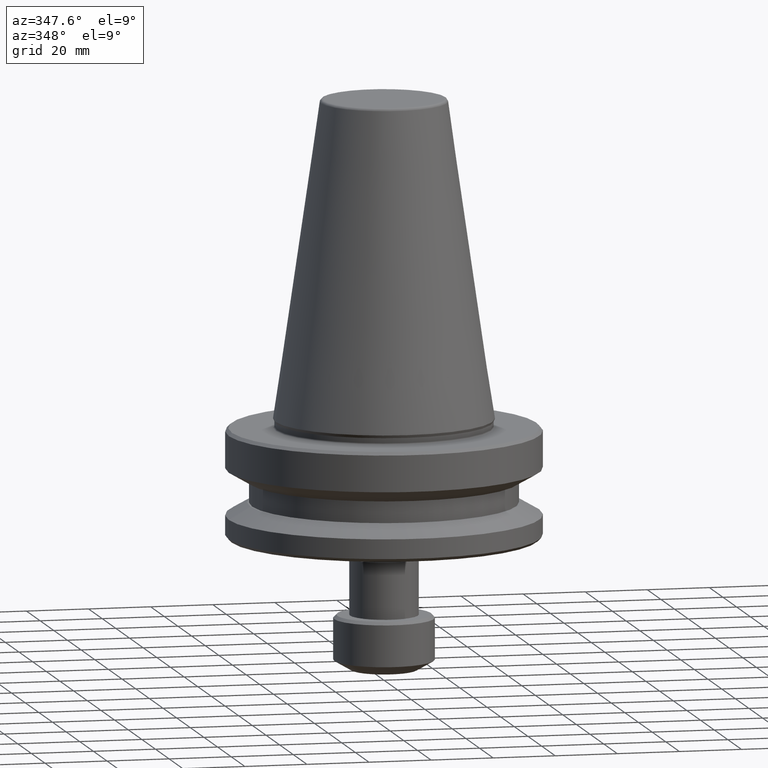
[diagram: clean part render]
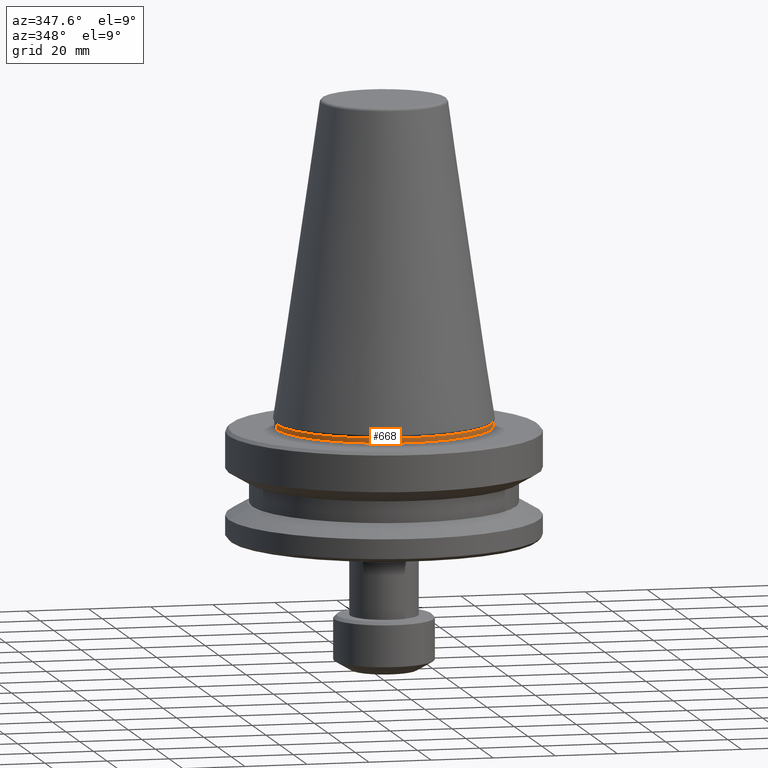
[diagram: same view with one face highlighted and labeled with its STEP entity id]
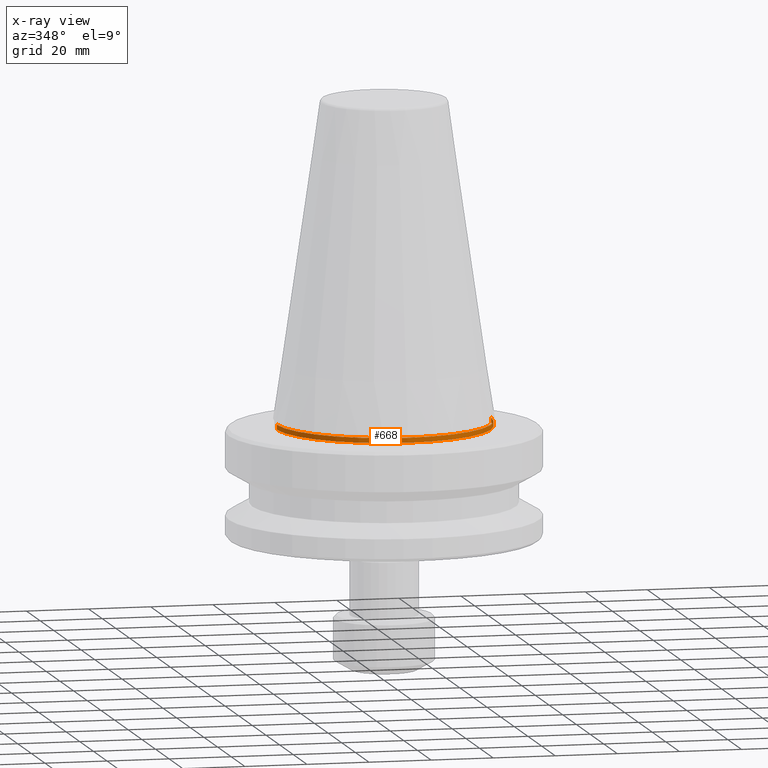
[diagram: x-ray of the same camera — body ghosted, the highlighted face saturated]
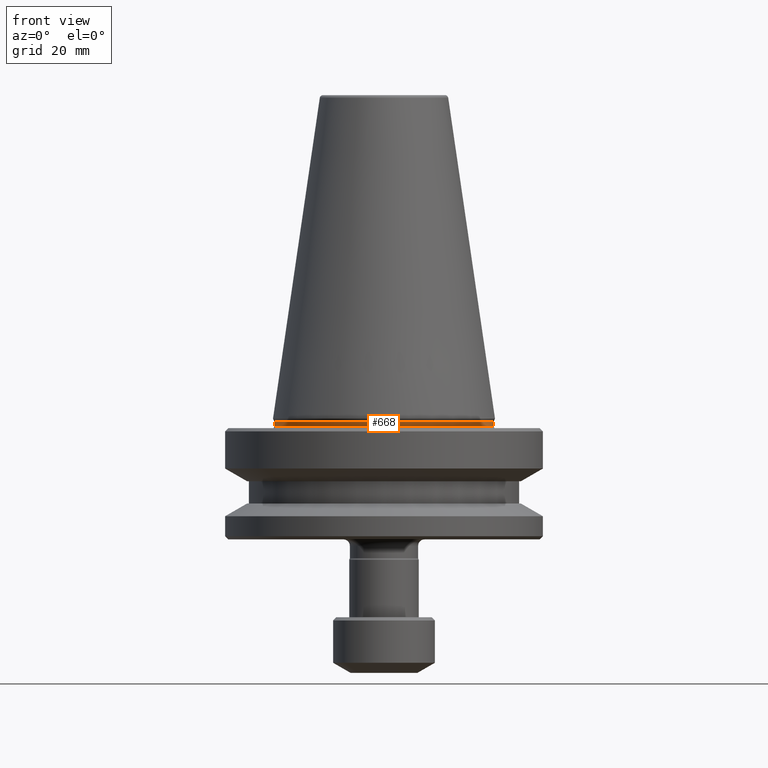
[diagram: same view with one face highlighted and labeled with its STEP entity id]
A machine part, auxiliary view. The second image highlights one B-rep face of the part: STEP entity #668.
The next image is the same camera in x-ray: the body ghosted, the highlighted face saturated — about 0% of this face is hidden behind the body in this view.
A second angle (front view) of the same face is appended — the face is thin or edge-on in the first view.
In plain terms, the highlighted cylindrical surface (partial cylindrical patch) has radius 34.5 mm, axis along (-0, -0, 1).
Its self-contained STEP definition (entity closure, byte-faithful):
#56 = DIRECTION ( 'NONE',  ( -0.0000000000000000000, -0.0000000000000000000, 1.000000000000000000 ) ) ;
#80 = FACE_OUTER_BOUND ( 'NONE', #1143, .T. ) ;
#84 = CARTESIAN_POINT ( 'NONE',  ( 34.49999999999997200, 0.0000000000000000000, -2.500000000000501800 ) ) ;
#86 = DIRECTION ( 'NONE',  ( -0.0000000000000000000, -0.0000000000000000000, 1.000000000000000000 ) ) ;
#90 = CARTESIAN_POINT ( 'NONE',  ( -34.49999999999997200, 4.255647627037051900E-015, -2.500000000000501800 ) ) ;
#111 = AXIS2_PLACEMENT_3D ( 'NONE', #893, #519, #819 ) ;
#123 = VERTEX_POINT ( 'NONE', #616 ) ;
#126 = CARTESIAN_POINT ( 'NONE',  ( -34.49999999999997200, 4.225031457058365800E-015, 117.7979649317793300 ) ) ;
#127 = AXIS2_PLACEMENT_3D ( 'NONE', #142, #620, #600 ) ;
#142 = CARTESIAN_POINT ( 'NONE',  ( 0.0000000000000000000, 0.0000000000000000000, -0.9114154412145913900 ) ) ;
#151 = CYLINDRICAL_SURFACE ( 'NONE', #1205, 34.49999999999997200 ) ;
#176 = ORIENTED_EDGE ( 'NONE', *, *, #1011, .T. ) ;
#237 = VERTEX_POINT ( 'NONE', #717 ) ;
#279 = CIRCLE ( 'NONE', #111, 34.49999999999997200 ) ;
#373 = CARTESIAN_POINT ( 'NONE',  ( 0.0000000000000000000, 0.0000000000000000000, 117.7979649317793300 ) ) ;
#414 = CARTESIAN_POINT ( 'NONE',  ( 34.49999999999997200, 0.0000000000000000000, 117.7979649317793300 ) ) ;
#501 = EDGE_CURVE ( 'NONE', #123, #237, #891, .T. ) ;
#519 = DIRECTION ( 'NONE',  ( -0.0000000000000000000, -0.0000000000000000000, 1.000000000000000000 ) ) ;
#521 = DIRECTION ( 'NONE',  ( 1.000000000000000000, 0.0000000000000000000, 0.0000000000000000000 ) ) ;
#545 = EDGE_CURVE ( 'NONE', #1034, #123, #1183, .T. ) ;
#600 = DIRECTION ( 'NONE',  ( 1.000000000000000000, 0.0000000000000000000, 0.0000000000000000000 ) ) ;
#616 = CARTESIAN_POINT ( 'NONE',  ( -34.49999999999997200, 4.225031457058365800E-015, -0.9114154412145913900 ) ) ;
#620 = DIRECTION ( 'NONE',  ( -0.0000000000000000000, -0.0000000000000000000, 1.000000000000000000 ) ) ;
#647 = DIRECTION ( 'NONE',  ( -0.0000000000000000000, -0.0000000000000000000, 1.000000000000000000 ) ) ;
#668 = ADVANCED_FACE ( 'NONE', ( #80 ), #151, .T. ) ;
#702 = ORIENTED_EDGE ( 'NONE', *, *, #545, .F. ) ;
#716 = ORIENTED_EDGE ( 'NONE', *, *, #871, .T. ) ;
#717 = CARTESIAN_POINT ( 'NONE',  ( 34.49999999999997200, 0.0000000000000000000, -0.9114154412145913900 ) ) ;
#804 = VERTEX_POINT ( 'NONE', #84 ) ;
#819 = DIRECTION ( 'NONE',  ( 1.000000000000000000, 0.0000000000000000000, 0.0000000000000000000 ) ) ;
#871 = EDGE_CURVE ( 'NONE', #804, #237, #945, .T. ) ;
#891 = CIRCLE ( 'NONE', #127, 34.49999999999997200 ) ;
#893 = CARTESIAN_POINT ( 'NONE',  ( 0.0000000000000000000, 0.0000000000000000000, -2.500000000000501800 ) ) ;
#927 = VECTOR ( 'NONE', #86, 1000.000000000000000 ) ;
#945 = LINE ( 'NONE', #414, #927 ) ;
#977 = ORIENTED_EDGE ( 'NONE', *, *, #501, .F. ) ;
#1011 = EDGE_CURVE ( 'NONE', #1034, #804, #279, .T. ) ;
#1034 = VERTEX_POINT ( 'NONE', #90 ) ;
#1118 = VECTOR ( 'NONE', #647, 1000.000000000000000 ) ;
#1143 = EDGE_LOOP ( 'NONE', ( #702, #176, #716, #977 ) ) ;
#1183 = LINE ( 'NONE', #126, #1118 ) ;
#1205 = AXIS2_PLACEMENT_3D ( 'NONE', #373, #56, #521 ) ;